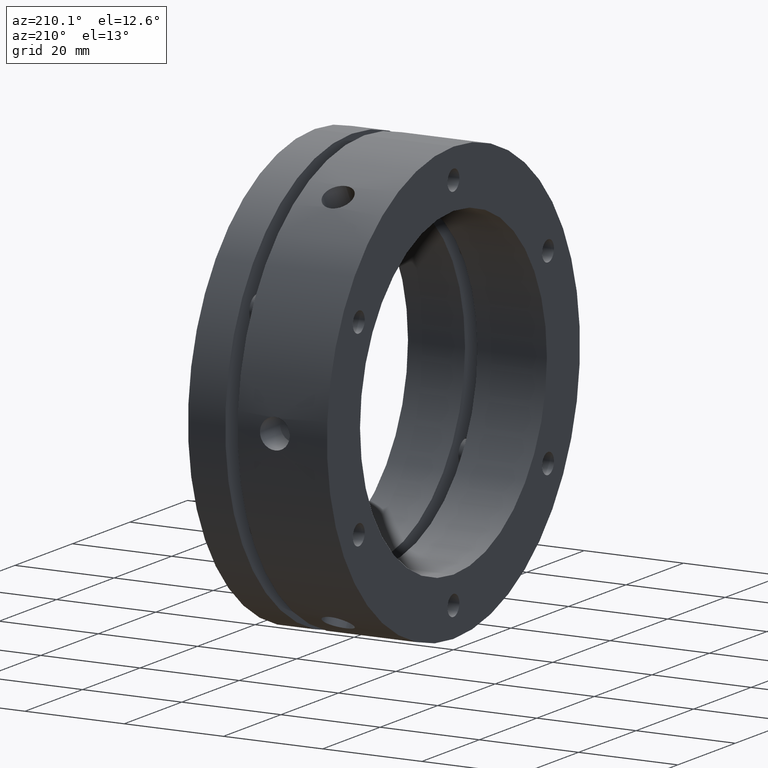
[diagram: clean part render]
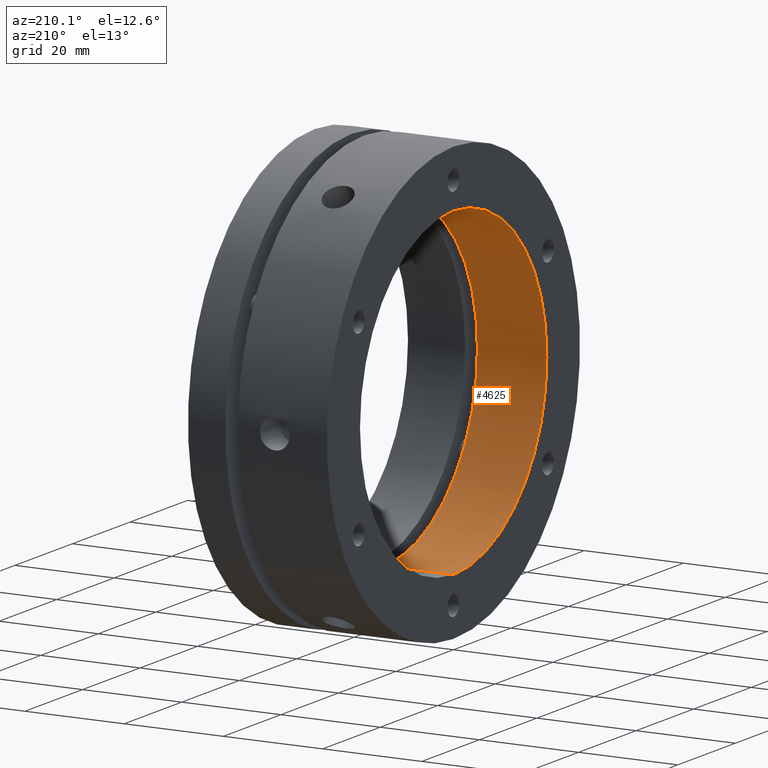
[diagram: same view with one face highlighted and labeled with its STEP entity id]
A machine part, auxiliary view. The second image highlights one B-rep face of the part: STEP entity #4625.
In plain terms, the highlighted cylindrical surface (partial cylindrical patch) has radius 32.5 mm, axis along (1, 0, 0).
Its self-contained STEP definition (entity closure, byte-faithful):
#158 = CARTESIAN_POINT ( 'NONE',  ( -8.673617379884035500E-015, 3.980102097228898600E-015, 32.50000000000000000 ) ) ;
#169 = CARTESIAN_POINT ( 'NONE',  ( 14.00000000000001100, 3.980102097228898600E-015, 32.50000000000000000 ) ) ;
#177 = CARTESIAN_POINT ( 'NONE',  ( -8.673617379884035500E-015, 0.0000000000000000000, -32.50000000000000000 ) ) ;
#229 = CARTESIAN_POINT ( 'NONE',  ( 14.00000000000001100, 0.0000000000000000000, -32.50000000000000000 ) ) ;
#480 = CARTESIAN_POINT ( 'NONE',  ( 14.00000000000001100, 0.0000000000000000000, 0.0000000000000000000 ) ) ;
#481 = DIRECTION ( 'NONE',  ( -1.000000000000000000, -0.0000000000000000000, -0.0000000000000000000 ) ) ;
#482 = DIRECTION ( 'NONE',  ( 0.0000000000000000000, 0.0000000000000000000, -1.000000000000000000 ) ) ;
#507 = CARTESIAN_POINT ( 'NONE',  ( 13.99999999999999300, 0.0000000000000000000, -32.50000000000000000 ) ) ;
#513 = DIRECTION ( 'NONE',  ( 1.000000000000000000, 0.0000000000000000000, 0.0000000000000000000 ) ) ;
#553 = CARTESIAN_POINT ( 'NONE',  ( 13.99999999999999300, 3.980102097228898600E-015, 32.50000000000000000 ) ) ;
#558 = DIRECTION ( 'NONE',  ( 1.000000000000000000, 0.0000000000000000000, 0.0000000000000000000 ) ) ;
#722 = CARTESIAN_POINT ( 'NONE',  ( -8.673617379884035500E-015, 0.0000000000000000000, 0.0000000000000000000 ) ) ;
#723 = DIRECTION ( 'NONE',  ( 1.000000000000000000, 0.0000000000000000000, 0.0000000000000000000 ) ) ;
#724 = DIRECTION ( 'NONE',  ( 0.0000000000000000000, 0.0000000000000000000, -1.000000000000000000 ) ) ;
#1322 = CIRCLE ( 'NONE', #3223, 32.50000000000000000 ) ;
#1340 = LINE ( 'NONE', #507, #1344 ) ;
#1344 = VECTOR ( 'NONE', #513, 1000.000000000000000 ) ;
#1377 = LINE ( 'NONE', #553, #1381 ) ;
#1381 = VECTOR ( 'NONE', #558, 1000.000000000000000 ) ;
#1478 = CIRCLE ( 'NONE', #3266, 32.50000000000000000 ) ;
#1511 = VERTEX_POINT ( 'NONE', #158 ) ;
#1539 = VERTEX_POINT ( 'NONE', #169 ) ;
#1578 = VERTEX_POINT ( 'NONE', #177 ) ;
#1674 = FACE_OUTER_BOUND ( 'NONE', #3472, .T. ) ;
#1692 = CYLINDRICAL_SURFACE ( 'NONE', #3352, 32.50000000000000000 ) ;
#1812 = VERTEX_POINT ( 'NONE', #229 ) ;
#2044 = DIRECTION ( 'NONE',  ( 0.0000000000000000000, 0.0000000000000000000, -1.000000000000000000 ) ) ;
#2046 = DIRECTION ( 'NONE',  ( 1.000000000000000000, 0.0000000000000000000, 0.0000000000000000000 ) ) ;
#2048 = CARTESIAN_POINT ( 'NONE',  ( 13.99999999999999300, 0.0000000000000000000, 0.0000000000000000000 ) ) ;
#3144 = EDGE_CURVE ( 'NONE', #1812, #1539, #1322, .T. ) ;
#3156 = EDGE_CURVE ( 'NONE', #1578, #1812, #1340, .T. ) ;
#3177 = EDGE_CURVE ( 'NONE', #1511, #1539, #1377, .T. ) ;
#3223 = AXIS2_PLACEMENT_3D ( 'NONE', #480, #481, #482 ) ;
#3266 = AXIS2_PLACEMENT_3D ( 'NONE', #722, #723, #724 ) ;
#3352 = AXIS2_PLACEMENT_3D ( 'NONE', #2048, #2046, #2044 ) ;
#3472 = EDGE_LOOP ( 'NONE', ( #3752, #3753, #3754, #3755 ) ) ;
#3602 = EDGE_CURVE ( 'NONE', #1511, #1578, #1478, .T. ) ;
#3752 = ORIENTED_EDGE ( 'NONE', *, *, #3602, .F. ) ;
#3753 = ORIENTED_EDGE ( 'NONE', *, *, #3177, .T. ) ;
#3754 = ORIENTED_EDGE ( 'NONE', *, *, #3144, .F. ) ;
#3755 = ORIENTED_EDGE ( 'NONE', *, *, #3156, .F. ) ;
#4625 = ADVANCED_FACE ( 'NONE', ( #1674 ), #1692, .F. ) ;